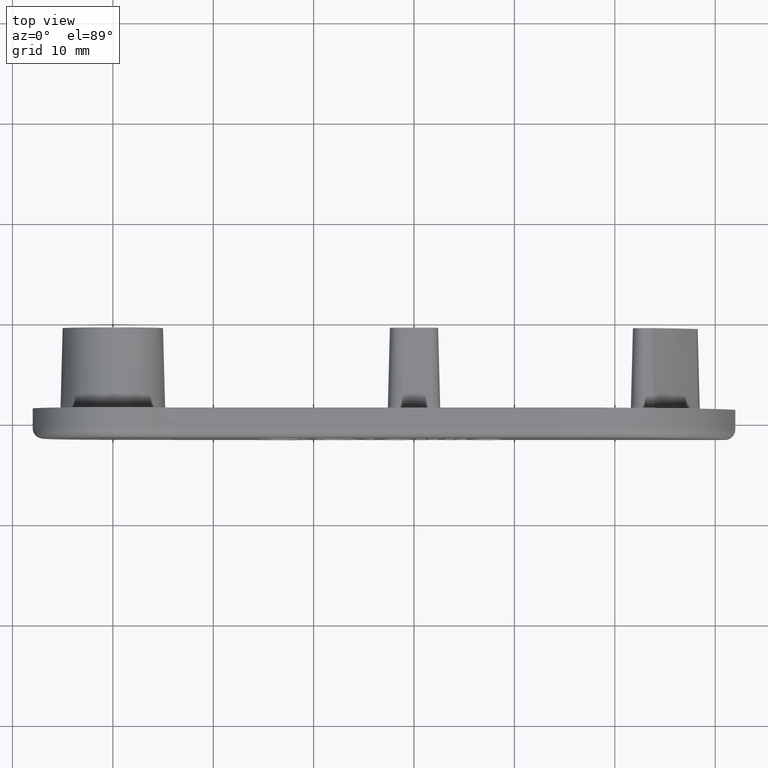
[diagram: clean part render]
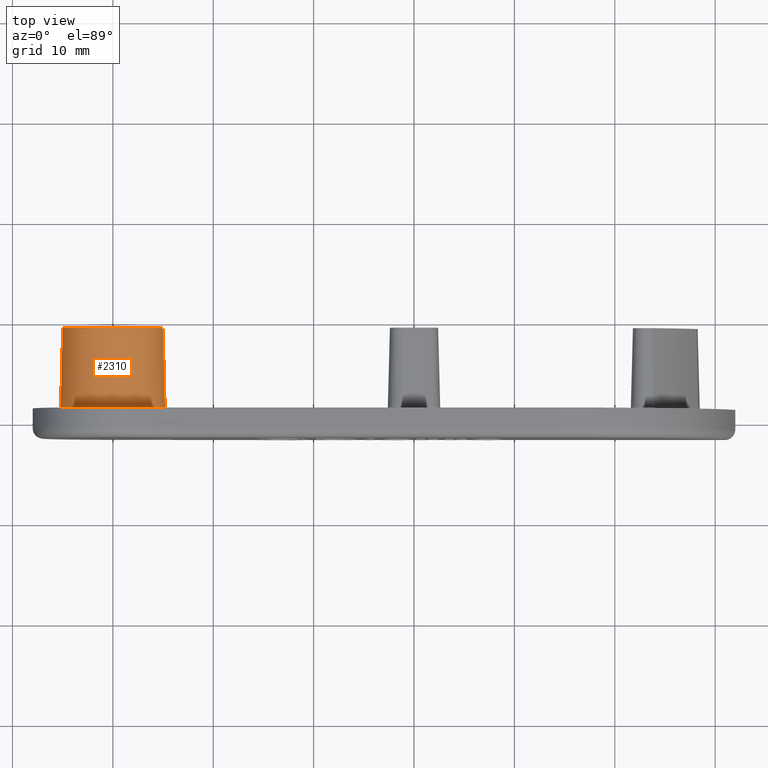
[diagram: same view with one face highlighted and labeled with its STEP entity id]
A machine part, top view. The second image highlights one B-rep face of the part: STEP entity #2310.
In plain terms, the highlighted conical surface has half-angle 1.5 deg.
Its self-contained STEP definition (entity closure, byte-faithful):
#15=CONICAL_SURFACE('',#2446,5.,0.0261799387799149);
#58=CIRCLE('',#2447,5.);
#59=CIRCLE('',#2448,5.20948737255349);
#318=FACE_OUTER_BOUND('',#467,.T.);
#467=EDGE_LOOP('',(#1977,#1978,#1979,#1980));
#665=LINE('',#4400,#876);
#876=VECTOR('',#2831,5.);
#1098=VERTEX_POINT('',#4397);
#1099=VERTEX_POINT('',#4399);
#1402=EDGE_CURVE('',#1098,#1098,#58,.T.);
#1403=EDGE_CURVE('',#1098,#1099,#665,.T.);
#1404=EDGE_CURVE('',#1099,#1099,#59,.T.);
#1977=ORIENTED_EDGE('',*,*,#1402,.F.);
#1978=ORIENTED_EDGE('',*,*,#1403,.T.);
#1979=ORIENTED_EDGE('',*,*,#1404,.F.);
#1980=ORIENTED_EDGE('',*,*,#1403,.F.);
#2310=ADVANCED_FACE('',(#318),#15,.T.);
#2446=AXIS2_PLACEMENT_3D('',#4396,#2827,#2828);
#2447=AXIS2_PLACEMENT_3D('',#4398,#2829,#2830);
#2448=AXIS2_PLACEMENT_3D('',#4401,#2832,#2833);
#2827=DIRECTION('center_axis',(0.,-1.,0.));
#2828=DIRECTION('ref_axis',(-1.,0.,0.));
#2829=DIRECTION('center_axis',(0.,1.,0.));
#2830=DIRECTION('ref_axis',(-1.,0.,0.));
#2831=DIRECTION('',(0.0261769483078732,-0.999657324975557,-3.20575159566826E-18));
#2832=DIRECTION('center_axis',(0.,-1.,0.));
#2833=DIRECTION('ref_axis',(-1.,0.,0.));
#4396=CARTESIAN_POINT('Origin',(0.,9.5,0.));
#4397=CARTESIAN_POINT('',(5.,9.5,-6.12323399573677E-16));
#4398=CARTESIAN_POINT('Origin',(0.,9.5,0.));
#4399=CARTESIAN_POINT('',(5.20948737255349,1.5,6.37978203599619E-16));
#4400=CARTESIAN_POINT('',(5.,9.5,-6.12323399573677E-16));
#4401=CARTESIAN_POINT('Origin',(0.,1.5,0.));